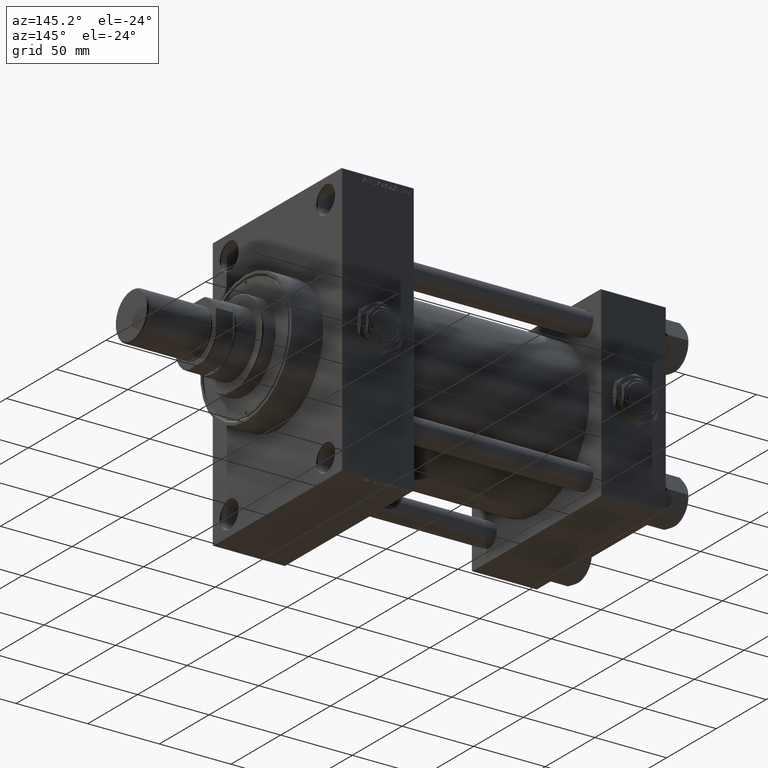
[diagram: clean part render]
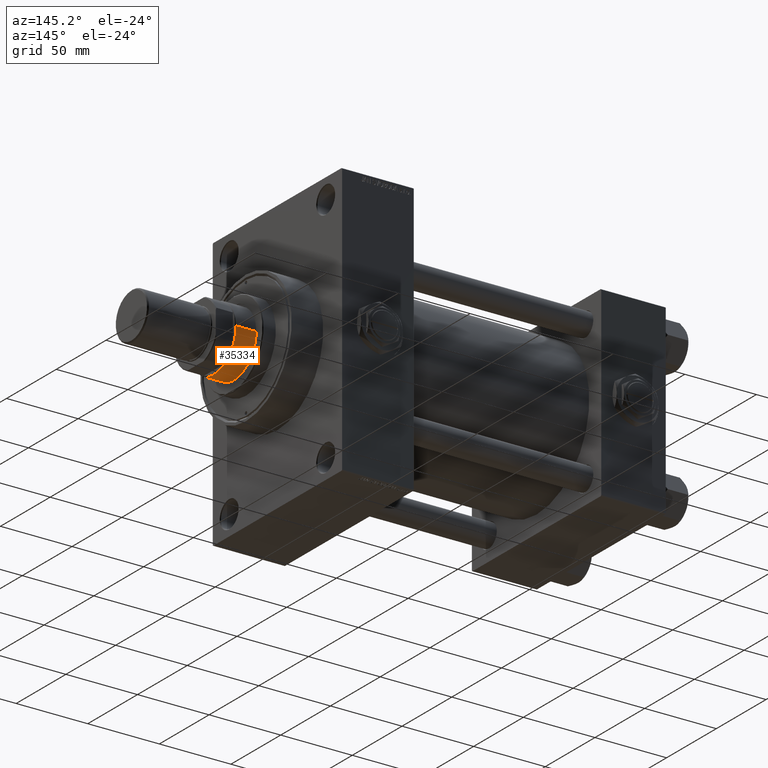
[diagram: same view with one face highlighted and labeled with its STEP entity id]
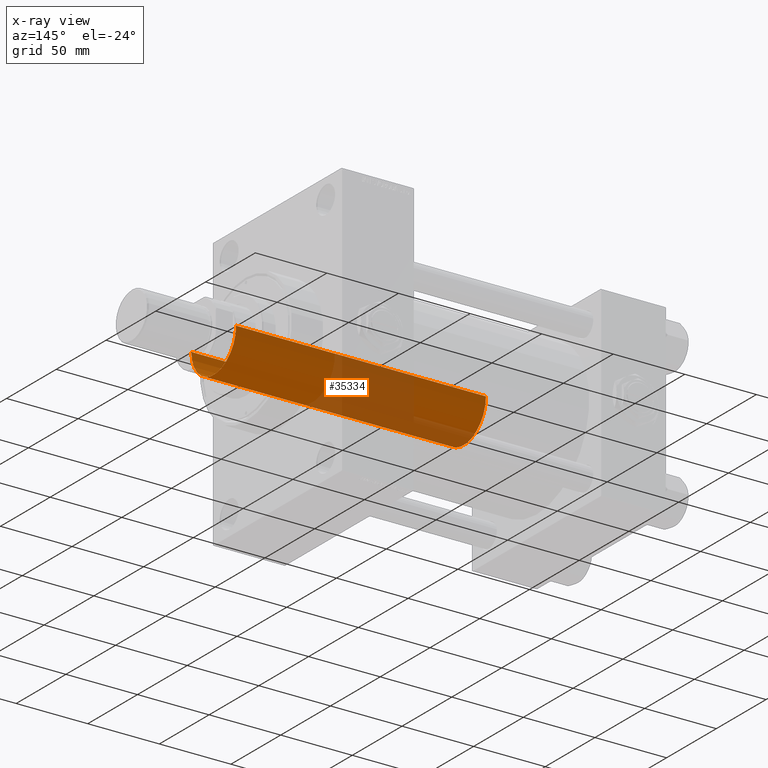
[diagram: x-ray of the same camera — body ghosted, the highlighted face saturated]
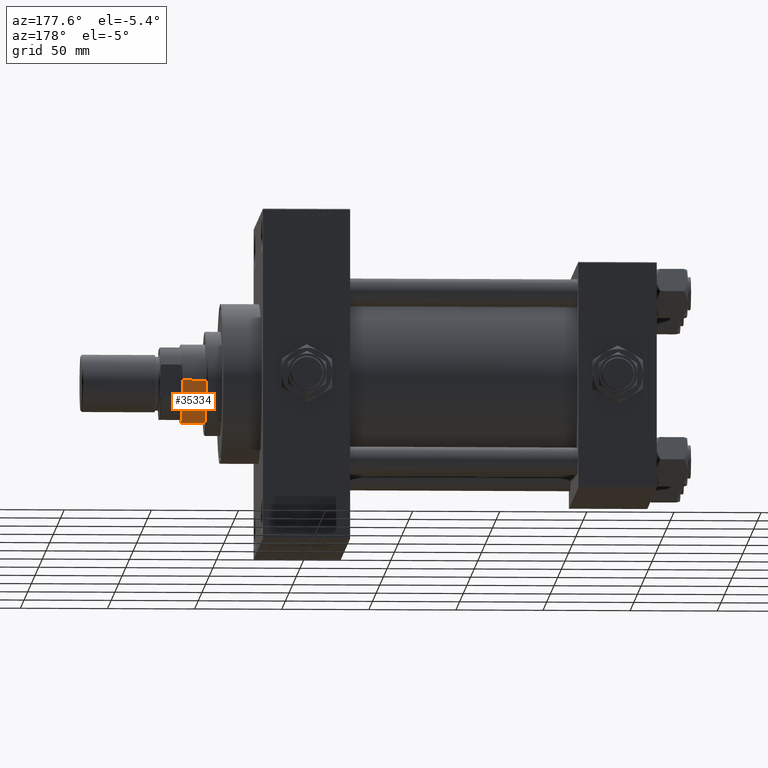
[diagram: same view with one face highlighted and labeled with its STEP entity id]
A machine part, auxiliary view. The second image highlights one B-rep face of the part: STEP entity #35334.
The next image is the same camera in x-ray: the body ghosted, the highlighted face saturated — about 41% of this face is hidden behind the body in this view.
A second angle (auxiliary view) of the same face is appended — the face is thin or edge-on in the first view.
In plain terms, the highlighted cylindrical surface (partial cylindrical patch) has radius 22.5 mm, axis along (-1, 0, 0).
Its self-contained STEP definition (entity closure, byte-faithful):
#2813 = DIRECTION ( 'NONE',  ( 1.000000000000000000, 0.000000000000000000, 0.000000000000000000 ) ) ;
#3509 = ORIENTED_EDGE ( 'NONE', *, *, #46220, .F. ) ;
#3570 = CARTESIAN_POINT ( 'NONE',  ( 0.000000000000000000, 0.000000000000000000, 51.00000000000000000 ) ) ;
#4887 = VERTEX_POINT ( 'NONE', #19659 ) ;
#6279 = ORIENTED_EDGE ( 'NONE', *, *, #48439, .T. ) ;
#7059 = CARTESIAN_POINT ( 'NONE',  ( 0.000000000000000000, 0.000000000000000000, 225.4999999999999716 ) ) ;
#9652 = CARTESIAN_POINT ( 'NONE',  ( 0.000000000000000000, 0.000000000000000000, 225.9999999999999716 ) ) ;
#10237 = AXIS2_PLACEMENT_3D ( 'NONE', #7059, #13769, #48215 ) ;
#10953 = AXIS2_PLACEMENT_3D ( 'NONE', #3570, #34429, #2813 ) ;
#10961 = LINE ( 'NONE', #42070, #17758 ) ;
#13214 = DIRECTION ( 'NONE',  ( -0.000000000000000000, -0.000000000000000000, -1.000000000000000000 ) ) ;
#13396 = VECTOR ( 'NONE', #15748, 1000.000000000000000 ) ;
#13769 = DIRECTION ( 'NONE',  ( 0.000000000000000000, 0.000000000000000000, -1.000000000000000000 ) ) ;
#14410 = ORIENTED_EDGE ( 'NONE', *, *, #45703, .T. ) ;
#15748 = DIRECTION ( 'NONE',  ( -0.000000000000000000, -0.000000000000000000, -1.000000000000000000 ) ) ;
#17546 = CIRCLE ( 'NONE', #10237, 22.50000000000000355 ) ;
#17758 = VECTOR ( 'NONE', #22167, 1000.000000000000000 ) ;
#19426 = CARTESIAN_POINT ( 'NONE',  ( -22.50000000000000355, 0.000000000000000000, 51.00000000000000000 ) ) ;
#19659 = CARTESIAN_POINT ( 'NONE',  ( -22.50000000000000355, 0.000000000000000000, 225.4999999999999716 ) ) ;
#21350 = DIRECTION ( 'NONE',  ( -1.000000000000000000, 0.000000000000000000, 0.000000000000000000 ) ) ;
#22167 = DIRECTION ( 'NONE',  ( -0.000000000000000000, -0.000000000000000000, -1.000000000000000000 ) ) ;
#22687 = CARTESIAN_POINT ( 'NONE',  ( 22.50000000000000355, 2.755455298081545172E-15, 51.00000000000000000 ) ) ;
#23137 = LINE ( 'NONE', #38698, #13396 ) ;
#25874 = AXIS2_PLACEMENT_3D ( 'NONE', #9652, #13214, #21350 ) ;
#29026 = FACE_OUTER_BOUND ( 'NONE', #43876, .T. ) ;
#30881 = ORIENTED_EDGE ( 'NONE', *, *, #36436, .T. ) ;
#31898 = VERTEX_POINT ( 'NONE', #46030 ) ;
#32599 = CYLINDRICAL_SURFACE ( 'NONE', #25874, 22.50000000000000355 ) ;
#34429 = DIRECTION ( 'NONE',  ( 0.000000000000000000, 0.000000000000000000, 1.000000000000000000 ) ) ;
#35334 = ADVANCED_FACE ( 'NONE', ( #29026 ), #32599, .T. ) ;
#35454 = CIRCLE ( 'NONE', #10953, 22.50000000000000355 ) ;
#36436 = EDGE_CURVE ( 'NONE', #31898, #36454, #10961, .T. ) ;
#36454 = VERTEX_POINT ( 'NONE', #22687 ) ;
#38698 = CARTESIAN_POINT ( 'NONE',  ( -22.50000000000000355, 0.000000000000000000, 225.9999999999999716 ) ) ;
#38859 = VERTEX_POINT ( 'NONE', #19426 ) ;
#42070 = CARTESIAN_POINT ( 'NONE',  ( 22.50000000000000355, 2.755455298081545172E-15, 225.9999999999999716 ) ) ;
#43876 = EDGE_LOOP ( 'NONE', ( #6279, #30881, #14410, #3509 ) ) ;
#45703 = EDGE_CURVE ( 'NONE', #36454, #38859, #35454, .T. ) ;
#46030 = CARTESIAN_POINT ( 'NONE',  ( 22.50000000000000355, 2.755455298081545172E-15, 225.4999999999999716 ) ) ;
#46220 = EDGE_CURVE ( 'NONE', #4887, #38859, #23137, .T. ) ;
#48215 = DIRECTION ( 'NONE',  ( 1.000000000000000000, 0.000000000000000000, 0.000000000000000000 ) ) ;
#48439 = EDGE_CURVE ( 'NONE', #4887, #31898, #17546, .T. ) ;